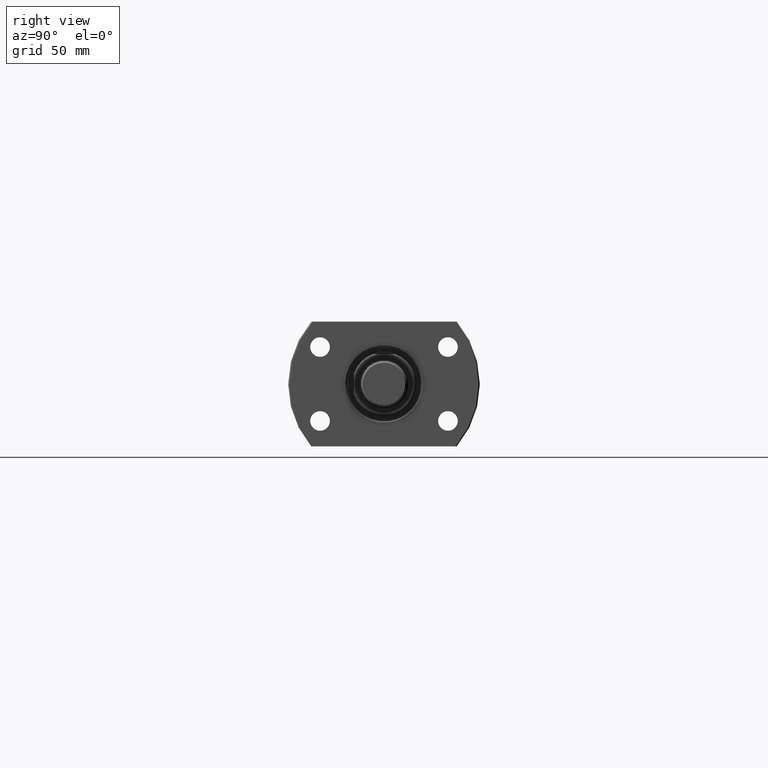
[diagram: clean part render]
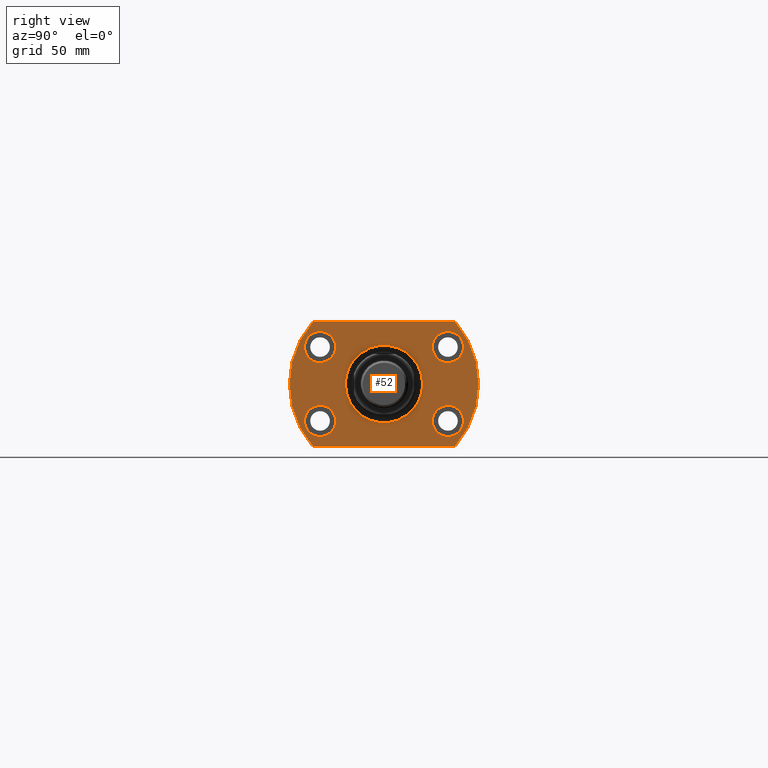
[diagram: same view with one face highlighted and labeled with its STEP entity id]
A machine part, right view. The second image highlights one B-rep face of the part: STEP entity #52.
In plain terms, the highlighted planar face has unit normal (-1, -0, 0).
Its self-contained STEP definition (entity closure, byte-faithful):
#52 = ADVANCED_FACE ( 'NONE', ( #2192, #2508, #3082, #1884, #2755, #190 ), #3606, .F. ) ;
#58 = VERTEX_POINT ( 'NONE', #2584 ) ;
#61 = CARTESIAN_POINT ( 'NONE',  ( 32.20000000000000284, 31.51586901863966972, 27.00000000000001066 ) ) ;
#84 = ORIENTED_EDGE ( 'NONE', *, *, #667, .F. ) ;
#91 = DIRECTION ( 'NONE',  ( -2.928503215352364811E-17, 1.000000000000000000, -0.000000000000000000 ) ) ;
#101 = CARTESIAN_POINT ( 'NONE',  ( 32.20000000000000284, 16.74999999999805311, 0.000000000000000000 ) ) ;
#120 = DIRECTION ( 'NONE',  ( 1.000000000000000000, -2.886466111666351885E-14, 0.000000000000000000 ) ) ;
#121 = ORIENTED_EDGE ( 'NONE', *, *, #1558, .F. ) ;
#137 = CARTESIAN_POINT ( 'NONE',  ( 32.19999999999939888, -20.95000000000092655, 16.00000000000000000 ) ) ;
#158 = DIRECTION ( 'NONE',  ( -1.000000000000000000, -2.928503215352364811E-17, 0.000000000000000000 ) ) ;
#164 = AXIS2_PLACEMENT_3D ( 'NONE', #1738, #1755, #884 ) ;
#190 = FACE_OUTER_BOUND ( 'NONE', #1209, .T. ) ;
#228 = VERTEX_POINT ( 'NONE', #1828 ) ;
#253 = DIRECTION ( 'NONE',  ( 1.000000000000000000, 2.928503215352364811E-17, -0.000000000000000000 ) ) ;
#256 = ORIENTED_EDGE ( 'NONE', *, *, #1749, .T. ) ;
#260 = EDGE_CURVE ( 'NONE', #2325, #228, #2679, .T. ) ;
#268 = AXIS2_PLACEMENT_3D ( 'NONE', #993, #2131, #1238 ) ;
#332 = AXIS2_PLACEMENT_3D ( 'NONE', #725, #158, #1851 ) ;
#386 = AXIS2_PLACEMENT_3D ( 'NONE', #3231, #618, #411 ) ;
#406 = VERTEX_POINT ( 'NONE', #2219 ) ;
#411 = DIRECTION ( 'NONE',  ( 0.000000000000000000, 1.000000000000000000, 0.000000000000000000 ) ) ;
#427 = ORIENTED_EDGE ( 'NONE', *, *, #724, .T. ) ;
#434 = DIRECTION ( 'NONE',  ( 2.878355989768924761E-14, 1.000000000000000000, 0.000000000000000000 ) ) ;
#449 = CIRCLE ( 'NONE', #1220, 6.749999999999999112 ) ;
#502 = CIRCLE ( 'NONE', #332, 16.74999999999898392 ) ;
#516 = VERTEX_POINT ( 'NONE', #2536 ) ;
#555 = CARTESIAN_POINT ( 'NONE',  ( 32.20000000000000284, 9.429780353434613113E-16, 0.000000000000000000 ) ) ;
#557 = EDGE_LOOP ( 'NONE', ( #2619, #2919 ) ) ;
#580 = DIRECTION ( 'NONE',  ( -1.000000000000000000, -2.928503215352364811E-17, 0.000000000000000000 ) ) ;
#618 = DIRECTION ( 'NONE',  ( 1.000000000000000000, 2.928503215352364811E-17, -0.000000000000000000 ) ) ;
#643 = CARTESIAN_POINT ( 'NONE',  ( 32.20000000000000284, 9.429780353434613113E-16, 0.000000000000000000 ) ) ;
#667 = EDGE_CURVE ( 'NONE', #1158, #3194, #449, .T. ) ;
#670 = EDGE_CURVE ( 'NONE', #1191, #406, #3364, .T. ) ;
#671 = CARTESIAN_POINT ( 'NONE',  ( 32.20000000000059970, 20.94999999999907203, 16.00000000000000000 ) ) ;
#673 = ORIENTED_EDGE ( 'NONE', *, *, #260, .F. ) ;
#724 = EDGE_CURVE ( 'NONE', #406, #3215, #2648, .T. ) ;
#725 = CARTESIAN_POINT ( 'NONE',  ( 32.20000000000000284, -9.294420879565652464E-13, 0.000000000000000000 ) ) ;
#739 = EDGE_CURVE ( 'NONE', #1723, #2775, #924, .T. ) ;
#795 = VERTEX_POINT ( 'NONE', #137 ) ;
#816 = ORIENTED_EDGE ( 'NONE', *, *, #2258, .F. ) ;
#884 = DIRECTION ( 'NONE',  ( 2.878355989768924761E-14, 1.000000000000000000, 0.000000000000000000 ) ) ;
#924 = CIRCLE ( 'NONE', #3068, 16.74999999999898392 ) ;
#939 = DIRECTION ( 'NONE',  ( 2.878355989768924761E-14, 1.000000000000000000, 0.000000000000000000 ) ) ;
#952 = EDGE_LOOP ( 'NONE', ( #1295, #121 ) ) ;
#971 = CARTESIAN_POINT ( 'NONE',  ( 32.20000000000000284, -41.00000000000000000, -27.00000000000001066 ) ) ;
#993 = CARTESIAN_POINT ( 'NONE',  ( 32.20000000000079865, 27.69999999999907203, -16.00000000000000000 ) ) ;
#1099 = AXIS2_PLACEMENT_3D ( 'NONE', #555, #253, #2847 ) ;
#1158 = VERTEX_POINT ( 'NONE', #671 ) ;
#1191 = VERTEX_POINT ( 'NONE', #3228 ) ;
#1209 = EDGE_LOOP ( 'NONE', ( #673, #256, #2828, #427, #2571 ) ) ;
#1213 = DIRECTION ( 'NONE',  ( 1.000000000000000000, 2.928503215352364811E-17, -0.000000000000000000 ) ) ;
#1220 = AXIS2_PLACEMENT_3D ( 'NONE', #3491, #120, #1807 ) ;
#1238 = DIRECTION ( 'NONE',  ( 2.878355989768924761E-14, 1.000000000000000000, 0.000000000000000000 ) ) ;
#1271 = AXIS2_PLACEMENT_3D ( 'NONE', #3329, #580, #2903 ) ;
#1295 = ORIENTED_EDGE ( 'NONE', *, *, #2022, .F. ) ;
#1300 = AXIS2_PLACEMENT_3D ( 'NONE', #3183, #1480, #939 ) ;
#1302 = EDGE_LOOP ( 'NONE', ( #1459, #1966 ) ) ;
#1322 = EDGE_CURVE ( 'NONE', #795, #516, #1589, .T. ) ;
#1361 = EDGE_LOOP ( 'NONE', ( #2146, #84 ) ) ;
#1381 = DIRECTION ( 'NONE',  ( 1.000000000000000000, -2.884016039175094104E-14, 0.000000000000000000 ) ) ;
#1400 = DIRECTION ( 'NONE',  ( 2.878355989768924761E-14, 1.000000000000000000, 0.000000000000000000 ) ) ;
#1413 = CIRCLE ( 'NONE', #1991, 6.749999999999999112 ) ;
#1459 = ORIENTED_EDGE ( 'NONE', *, *, #2951, .F. ) ;
#1480 = DIRECTION ( 'NONE',  ( 1.000000000000000000, -2.884016039175094104E-14, 0.000000000000000000 ) ) ;
#1550 = CARTESIAN_POINT ( 'NONE',  ( 32.19999999999919993, -27.70000000000092655, 16.00000000000000000 ) ) ;
#1558 = EDGE_CURVE ( 'NONE', #2678, #58, #3504, .T. ) ;
#1569 = DIRECTION ( 'NONE',  ( 2.878355989768924761E-14, 1.000000000000000000, 0.000000000000000000 ) ) ;
#1584 = DIRECTION ( 'NONE',  ( 1.000000000000000000, -2.884016039175094104E-14, 0.000000000000000000 ) ) ;
#1589 = CIRCLE ( 'NONE', #2838, 6.749999999999999112 ) ;
#1654 = DIRECTION ( 'NONE',  ( 1.000000000000000000, -2.886466111666351885E-14, 0.000000000000000000 ) ) ;
#1663 = DIRECTION ( 'NONE',  ( 1.000000000000000000, -2.884016039175094104E-14, 0.000000000000000000 ) ) ;
#1698 = EDGE_CURVE ( 'NONE', #2775, #1723, #502, .T. ) ;
#1723 = VERTEX_POINT ( 'NONE', #101 ) ;
#1738 = CARTESIAN_POINT ( 'NONE',  ( 32.19999999999919993, -27.70000000000092655, -16.00000000000000000 ) ) ;
#1741 = CARTESIAN_POINT ( 'NONE',  ( 32.20000000000000284, -30.85449724108301695, 27.00000000000001066 ) ) ;
#1749 = EDGE_CURVE ( 'NONE', #2325, #1191, #3201, .T. ) ;
#1755 = DIRECTION ( 'NONE',  ( 1.000000000000000000, -2.884016039175094104E-14, 0.000000000000000000 ) ) ;
#1805 = EDGE_LOOP ( 'NONE', ( #2054, #816 ) ) ;
#1807 = DIRECTION ( 'NONE',  ( 2.878355989768924761E-14, 1.000000000000000000, 0.000000000000000000 ) ) ;
#1825 = CIRCLE ( 'NONE', #1300, 6.749999999999999112 ) ;
#1826 = CIRCLE ( 'NONE', #2191, 6.749999999999999112 ) ;
#1828 = CARTESIAN_POINT ( 'NONE',  ( 32.20000000000000284, 30.85449724108302050, 27.00000000000001066 ) ) ;
#1851 = DIRECTION ( 'NONE',  ( 0.000000000000000000, -1.000000000000000000, 0.000000000000000000 ) ) ;
#1872 = CARTESIAN_POINT ( 'NONE',  ( 32.20000000000059970, 20.94999999999907203, -16.00000000000000000 ) ) ;
#1881 = AXIS2_PLACEMENT_3D ( 'NONE', #3002, #1654, #434 ) ;
#1884 = FACE_BOUND ( 'NONE', #952, .T. ) ;
#1966 = ORIENTED_EDGE ( 'NONE', *, *, #2832, .F. ) ;
#1991 = AXIS2_PLACEMENT_3D ( 'NONE', #3151, #1381, #1400 ) ;
#1996 = CIRCLE ( 'NONE', #1099, 41.00000000000000000 ) ;
#2022 = EDGE_CURVE ( 'NONE', #58, #2678, #1826, .T. ) ;
#2046 = VERTEX_POINT ( 'NONE', #1872 ) ;
#2054 = ORIENTED_EDGE ( 'NONE', *, *, #1322, .F. ) ;
#2114 = VERTEX_POINT ( 'NONE', #3041 ) ;
#2131 = DIRECTION ( 'NONE',  ( 1.000000000000000000, -2.884016039175094104E-14, 0.000000000000000000 ) ) ;
#2146 = ORIENTED_EDGE ( 'NONE', *, *, #2979, .F. ) ;
#2177 = DIRECTION ( 'NONE',  ( 2.878355989768924761E-14, 1.000000000000000000, 0.000000000000000000 ) ) ;
#2191 = AXIS2_PLACEMENT_3D ( 'NONE', #3299, #1584, #2177 ) ;
#2192 = FACE_BOUND ( 'NONE', #557, .T. ) ;
#2219 = CARTESIAN_POINT ( 'NONE',  ( 32.20000000000000284, -30.85449724108301695, -27.00000000000001066 ) ) ;
#2258 = EDGE_CURVE ( 'NONE', #516, #795, #1413, .T. ) ;
#2325 = VERTEX_POINT ( 'NONE', #1741 ) ;
#2382 = CIRCLE ( 'NONE', #1881, 6.749999999999999112 ) ;
#2508 = FACE_BOUND ( 'NONE', #1361, .T. ) ;
#2536 = CARTESIAN_POINT ( 'NONE',  ( 32.19999999999900808, -34.45000000000092655, 16.00000000000000000 ) ) ;
#2545 = CARTESIAN_POINT ( 'NONE',  ( 32.19999999999900808, -34.45000000000092655, -16.00000000000000000 ) ) ;
#2571 = ORIENTED_EDGE ( 'NONE', *, *, #2745, .T. ) ;
#2584 = CARTESIAN_POINT ( 'NONE',  ( 32.19999999999939888, -20.95000000000092655, -16.00000000000000000 ) ) ;
#2601 = VECTOR ( 'NONE', #91, 1000.000000000000000 ) ;
#2619 = ORIENTED_EDGE ( 'NONE', *, *, #739, .T. ) ;
#2634 = DIRECTION ( 'NONE',  ( 0.000000000000000000, -1.000000000000000000, 0.000000000000000000 ) ) ;
#2648 = LINE ( 'NONE', #971, #2601 ) ;
#2650 = DIRECTION ( 'NONE',  ( -0.000000000000000000, 1.000000000000000000, 0.000000000000000000 ) ) ;
#2678 = VERTEX_POINT ( 'NONE', #2545 ) ;
#2679 = LINE ( 'NONE', #61, #3107 ) ;
#2745 = EDGE_CURVE ( 'NONE', #3215, #228, #1996, .T. ) ;
#2755 = FACE_BOUND ( 'NONE', #1302, .T. ) ;
#2775 = VERTEX_POINT ( 'NONE', #3501 ) ;
#2828 = ORIENTED_EDGE ( 'NONE', *, *, #670, .T. ) ;
#2832 = EDGE_CURVE ( 'NONE', #2046, #2114, #1825, .T. ) ;
#2835 = CARTESIAN_POINT ( 'NONE',  ( 32.20000000000000284, 30.85449724108302405, -27.00000000000001066 ) ) ;
#2838 = AXIS2_PLACEMENT_3D ( 'NONE', #1550, #1663, #1569 ) ;
#2847 = DIRECTION ( 'NONE',  ( 0.000000000000000000, 1.000000000000000000, 0.000000000000000000 ) ) ;
#2903 = DIRECTION ( 'NONE',  ( 2.928503215352364811E-17, -1.000000000000000000, 0.000000000000000000 ) ) ;
#2919 = ORIENTED_EDGE ( 'NONE', *, *, #1698, .T. ) ;
#2921 = DIRECTION ( 'NONE',  ( -1.000000000000000000, -2.928503215352364811E-17, 0.000000000000000000 ) ) ;
#2951 = EDGE_CURVE ( 'NONE', #2114, #2046, #3507, .T. ) ;
#2979 = EDGE_CURVE ( 'NONE', #3194, #1158, #2382, .T. ) ;
#3002 = CARTESIAN_POINT ( 'NONE',  ( 32.20000000000079865, 27.69999999999907203, 16.00000000000000000 ) ) ;
#3041 = CARTESIAN_POINT ( 'NONE',  ( 32.20000000000099050, 34.44999999999907203, -16.00000000000000000 ) ) ;
#3068 = AXIS2_PLACEMENT_3D ( 'NONE', #3178, #2921, #2634 ) ;
#3082 = FACE_BOUND ( 'NONE', #1805, .T. ) ;
#3107 = VECTOR ( 'NONE', #2650, 1000.000000000000000 ) ;
#3151 = CARTESIAN_POINT ( 'NONE',  ( 32.19999999999919993, -27.70000000000092655, 16.00000000000000000 ) ) ;
#3159 = CARTESIAN_POINT ( 'NONE',  ( 32.20000000000099050, 34.44999999999907203, 16.00000000000000000 ) ) ;
#3178 = CARTESIAN_POINT ( 'NONE',  ( 32.20000000000000284, -9.294420879565652464E-13, 0.000000000000000000 ) ) ;
#3183 = CARTESIAN_POINT ( 'NONE',  ( 32.20000000000079865, 27.69999999999907203, -16.00000000000000000 ) ) ;
#3194 = VERTEX_POINT ( 'NONE', #3159 ) ;
#3201 = CIRCLE ( 'NONE', #3669, 41.00000000000000000 ) ;
#3215 = VERTEX_POINT ( 'NONE', #2835 ) ;
#3228 = CARTESIAN_POINT ( 'NONE',  ( 32.20000000000000284, -41.00000000000000000, 0.000000000000000000 ) ) ;
#3231 = CARTESIAN_POINT ( 'NONE',  ( 32.20000000000000284, 9.429780353434613113E-16, 0.000000000000000000 ) ) ;
#3299 = CARTESIAN_POINT ( 'NONE',  ( 32.19999999999919993, -27.70000000000092655, -16.00000000000000000 ) ) ;
#3329 = CARTESIAN_POINT ( 'NONE',  ( 32.20000000000000284, -41.00000000000000000, 0.000000000000000000 ) ) ;
#3364 = CIRCLE ( 'NONE', #386, 41.00000000000000000 ) ;
#3491 = CARTESIAN_POINT ( 'NONE',  ( 32.20000000000079865, 27.69999999999907203, 16.00000000000000000 ) ) ;
#3501 = CARTESIAN_POINT ( 'NONE',  ( 32.20000000000000284, -16.75000000000088463, 2.051283388571811365E-15 ) ) ;
#3502 = DIRECTION ( 'NONE',  ( 0.000000000000000000, 1.000000000000000000, 0.000000000000000000 ) ) ;
#3504 = CIRCLE ( 'NONE', #164, 6.749999999999999112 ) ;
#3507 = CIRCLE ( 'NONE', #268, 6.749999999999999112 ) ;
#3606 = PLANE ( 'NONE',  #1271 ) ;
#3669 = AXIS2_PLACEMENT_3D ( 'NONE', #643, #1213, #3502 ) ;